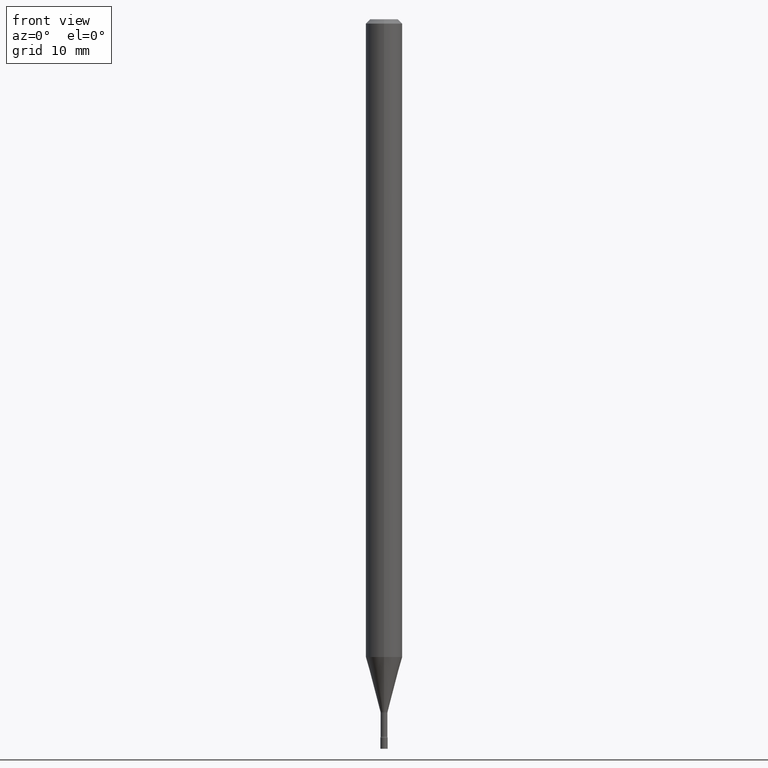
[diagram: clean part render]
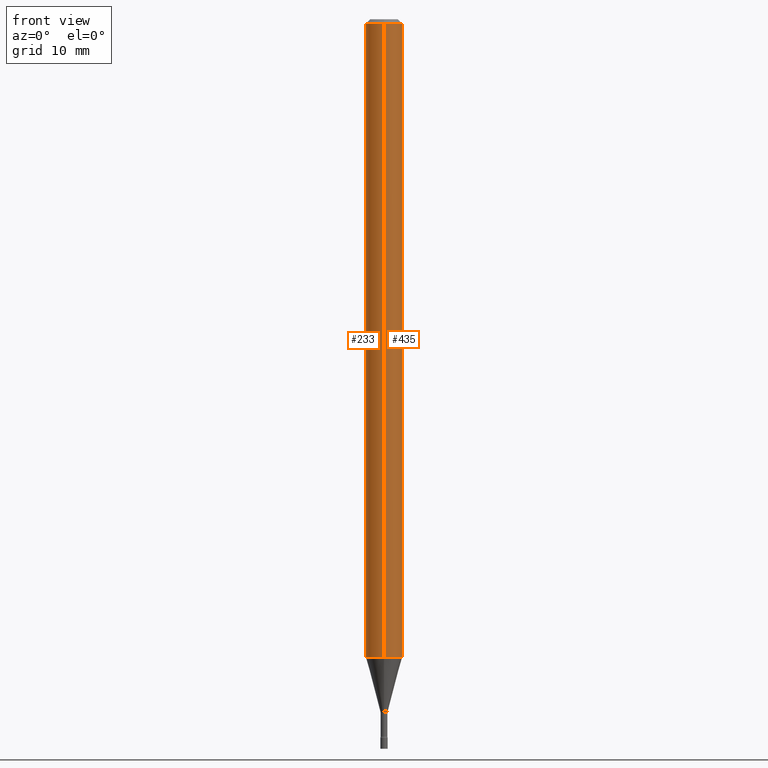
[diagram: same view with one multi-face feature highlighted, each face labeled with its STEP entity id]
A machine part, front view. The highlighted faces form ONE feature: a constant-radius fillet chain: 2 tangent blend faces with common blend radius 1.5875 mm. The faces share edges in the B-rep.
Their STEP definitions:
[1] entity #233 (Cylinder):
#23 = DIRECTION ( 'NONE',  ( -2.445524548783828743E-29, 3.491401512269146579E-15, 1.000000000000000000 ) ) ;
#24 = CARTESIAN_POINT ( 'NONE',  ( -4.364351673553912750E-16, -0.06250000000000005551, -0.01499999999999981209 ) ) ;
#44 = FACE_OUTER_BOUND ( 'NONE', #306, .T. ) ;
#45 = ORIENTED_EDGE ( 'NONE', *, *, #320, .F. ) ;
#73 = DIRECTION ( 'NONE',  ( -6.982962677686265922E-15, -1.000000000000000000, 3.483106191921935554E-15 ) ) ;
#79 = VECTOR ( 'NONE', #404, 39.37007874015748143 ) ;
#109 = DIRECTION ( 'NONE',  ( -2.445524548783828463E-29, 3.491401512269146579E-15, 1.000000000000000000 ) ) ;
#117 = LINE ( 'NONE', #280, #79 ) ;
#150 = CARTESIAN_POINT ( 'NONE',  ( 3.668286823175750261E-31, -5.237102268403730666E-17, -0.01500000000000003067 ) ) ;
#153 = VERTEX_POINT ( 'NONE', #258 ) ;
#165 = EDGE_CURVE ( 'NONE', #207, #153, #180, .T. ) ;
#167 = ORIENTED_EDGE ( 'NONE', *, *, #224, .F. ) ;
#170 = CIRCLE ( 'NONE', #272, 0.06250000000000000000 ) ;
#180 = CIRCLE ( 'NONE', #476, 0.06250000000000000000 ) ;
#191 = CARTESIAN_POINT ( 'NONE',  ( 0.000000000000000000, 0.000000000000000000, 0.000000000000000000 ) ) ;
#198 = CARTESIAN_POINT ( 'NONE',  ( 4.440892098501163573E-16, 0.06249999999999995143, -0.01500000000000024751 ) ) ;
#199 = ORIENTED_EDGE ( 'NONE', *, *, #427, .T. ) ;
#207 = VERTEX_POINT ( 'NONE', #218 ) ;
#218 = CARTESIAN_POINT ( 'NONE',  ( 4.440892098501159629E-16, 0.06249999999999236722, -2.185598421515880130 ) ) ;
#222 = AXIS2_PLACEMENT_3D ( 'NONE', #191, #267, #268 ) ;
#224 = EDGE_CURVE ( 'NONE', #207, #426, #309, .T. ) ;
#233 = ADVANCED_FACE ( 'NONE', ( #44 ), #300, .T. ) ;
#238 = VERTEX_POINT ( 'NONE', #24 ) ;
#258 = CARTESIAN_POINT ( 'NONE',  ( -4.364351673553382734E-16, -0.06250000000000764666, -2.185598421515879686 ) ) ;
#267 = DIRECTION ( 'NONE',  ( -2.445524548783828743E-29, 3.491401512269146579E-15, 1.000000000000000000 ) ) ;
#268 = DIRECTION ( 'NONE',  ( -6.982962677686265922E-15, -1.000000000000000000, 3.491401512269146579E-15 ) ) ;
#272 = AXIS2_PLACEMENT_3D ( 'NONE', #150, #275, #73 ) ;
#275 = DIRECTION ( 'NONE',  ( -2.445524548783828743E-29, 3.491401512269146579E-15, 1.000000000000000000 ) ) ;
#279 = ORIENTED_EDGE ( 'NONE', *, *, #165, .T. ) ;
#280 = CARTESIAN_POINT ( 'NONE',  ( -4.364351673553916201E-16, -0.06250000000000000000, 2.182125945168216612E-16 ) ) ;
#300 = CYLINDRICAL_SURFACE ( 'NONE', #222, 0.06250000000000000000 ) ;
#306 = EDGE_LOOP ( 'NONE', ( #167, #279, #199, #45 ) ) ;
#309 = LINE ( 'NONE', #460, #455 ) ;
#320 = EDGE_CURVE ( 'NONE', #426, #238, #170, .T. ) ;
#387 = CARTESIAN_POINT ( 'NONE',  ( 5.344934593600271178E-29, -7.630801634093603324E-15, -2.185598421515880130 ) ) ;
#404 = DIRECTION ( 'NONE',  ( -2.445524548783828463E-29, 3.491401512269146579E-15, 1.000000000000000000 ) ) ;
#424 = DIRECTION ( 'NONE',  ( -6.982962677686265922E-15, -1.000000000000000000, 4.370956789862821150E-15 ) ) ;
#426 = VERTEX_POINT ( 'NONE', #198 ) ;
#427 = EDGE_CURVE ( 'NONE', #153, #238, #117, .T. ) ;
#455 = VECTOR ( 'NONE', #109, 39.37007874015748143 ) ;
#460 = CARTESIAN_POINT ( 'NONE',  ( 4.440892098500625669E-16, 0.06250000000000000000, -2.182125945168216612E-16 ) ) ;
#476 = AXIS2_PLACEMENT_3D ( 'NONE', #387, #23, #424 ) ;
[2] entity #435 (Cylinder):
#1 = CYLINDRICAL_SURFACE ( 'NONE', #244, 0.06250000000000000000 ) ;
#9 = DIRECTION ( 'NONE',  ( -2.445524548783828743E-29, 3.491401512269146579E-15, 1.000000000000000000 ) ) ;
#24 = CARTESIAN_POINT ( 'NONE',  ( -4.364351673553912750E-16, -0.06250000000000005551, -0.01499999999999981209 ) ) ;
#68 = CIRCLE ( 'NONE', #256, 0.06250000000000000000 ) ;
#74 = EDGE_CURVE ( 'NONE', #238, #426, #68, .T. ) ;
#79 = VECTOR ( 'NONE', #404, 39.37007874015748143 ) ;
#96 = DIRECTION ( 'NONE',  ( -2.445524548783828743E-29, 3.491401512269146579E-15, 1.000000000000000000 ) ) ;
#99 = DIRECTION ( 'NONE',  ( -6.982962677686265922E-15, -1.000000000000000000, 4.370956789862821150E-15 ) ) ;
#109 = DIRECTION ( 'NONE',  ( -2.445524548783828463E-29, 3.491401512269146579E-15, 1.000000000000000000 ) ) ;
#117 = LINE ( 'NONE', #280, #79 ) ;
#153 = VERTEX_POINT ( 'NONE', #258 ) ;
#166 = CARTESIAN_POINT ( 'NONE',  ( 0.000000000000000000, 0.000000000000000000, 0.000000000000000000 ) ) ;
#198 = CARTESIAN_POINT ( 'NONE',  ( 4.440892098501163573E-16, 0.06249999999999995143, -0.01500000000000024751 ) ) ;
#207 = VERTEX_POINT ( 'NONE', #218 ) ;
#218 = CARTESIAN_POINT ( 'NONE',  ( 4.440892098501159629E-16, 0.06249999999999236722, -2.185598421515880130 ) ) ;
#224 = EDGE_CURVE ( 'NONE', #207, #426, #309, .T. ) ;
#232 = EDGE_LOOP ( 'NONE', ( #369, #400, #448, #281 ) ) ;
#238 = VERTEX_POINT ( 'NONE', #24 ) ;
#240 = EDGE_CURVE ( 'NONE', #153, #207, #365, .T. ) ;
#244 = AXIS2_PLACEMENT_3D ( 'NONE', #166, #9, #486 ) ;
#248 = CARTESIAN_POINT ( 'NONE',  ( 3.668286823175750261E-31, -5.237102268403730666E-17, -0.01500000000000003067 ) ) ;
#256 = AXIS2_PLACEMENT_3D ( 'NONE', #248, #96, #423 ) ;
#258 = CARTESIAN_POINT ( 'NONE',  ( -4.364351673553382734E-16, -0.06250000000000764666, -2.185598421515879686 ) ) ;
#280 = CARTESIAN_POINT ( 'NONE',  ( -4.364351673553916201E-16, -0.06250000000000000000, 2.182125945168216612E-16 ) ) ;
#281 = ORIENTED_EDGE ( 'NONE', *, *, #427, .F. ) ;
#309 = LINE ( 'NONE', #460, #455 ) ;
#323 = AXIS2_PLACEMENT_3D ( 'NONE', #428, #458, #99 ) ;
#365 = CIRCLE ( 'NONE', #323, 0.06250000000000000000 ) ;
#369 = ORIENTED_EDGE ( 'NONE', *, *, #240, .T. ) ;
#400 = ORIENTED_EDGE ( 'NONE', *, *, #224, .T. ) ;
#404 = DIRECTION ( 'NONE',  ( -2.445524548783828463E-29, 3.491401512269146579E-15, 1.000000000000000000 ) ) ;
#423 = DIRECTION ( 'NONE',  ( -6.982962677686265922E-15, -1.000000000000000000, 3.483106191921935554E-15 ) ) ;
#426 = VERTEX_POINT ( 'NONE', #198 ) ;
#427 = EDGE_CURVE ( 'NONE', #153, #238, #117, .T. ) ;
#428 = CARTESIAN_POINT ( 'NONE',  ( 5.344934593600271178E-29, -7.630801634093603324E-15, -2.185598421515880130 ) ) ;
#435 = ADVANCED_FACE ( 'NONE', ( #443 ), #1, .T. ) ;
#443 = FACE_OUTER_BOUND ( 'NONE', #232, .T. ) ;
#448 = ORIENTED_EDGE ( 'NONE', *, *, #74, .F. ) ;
#455 = VECTOR ( 'NONE', #109, 39.37007874015748143 ) ;
#458 = DIRECTION ( 'NONE',  ( -2.445524548783828743E-29, 3.491401512269146579E-15, 1.000000000000000000 ) ) ;
#460 = CARTESIAN_POINT ( 'NONE',  ( 4.440892098500625669E-16, 0.06250000000000000000, -2.182125945168216612E-16 ) ) ;
#486 = DIRECTION ( 'NONE',  ( -6.982962677686265922E-15, -1.000000000000000000, 3.491401512269146579E-15 ) ) ;